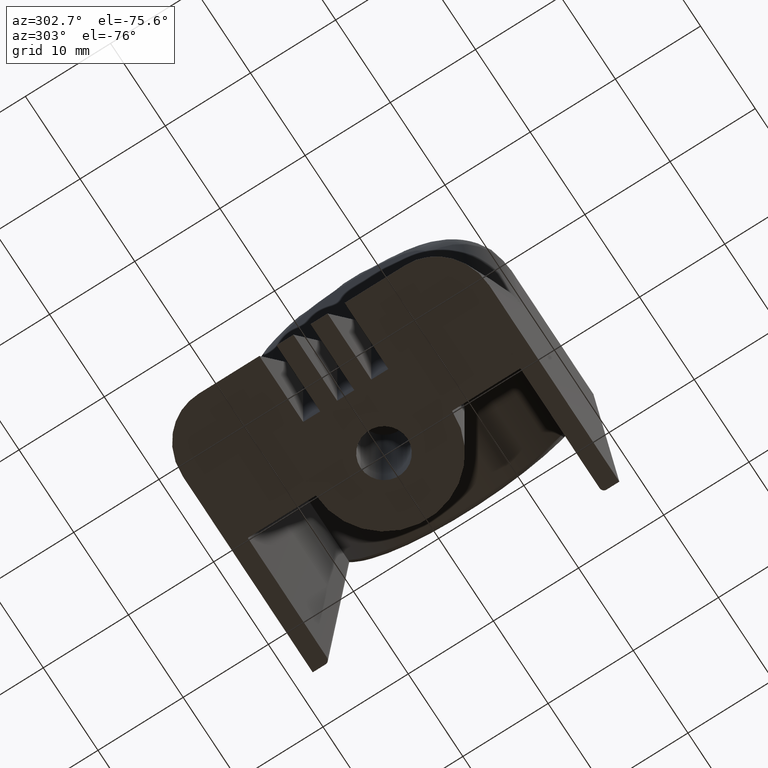
[diagram: clean part render]
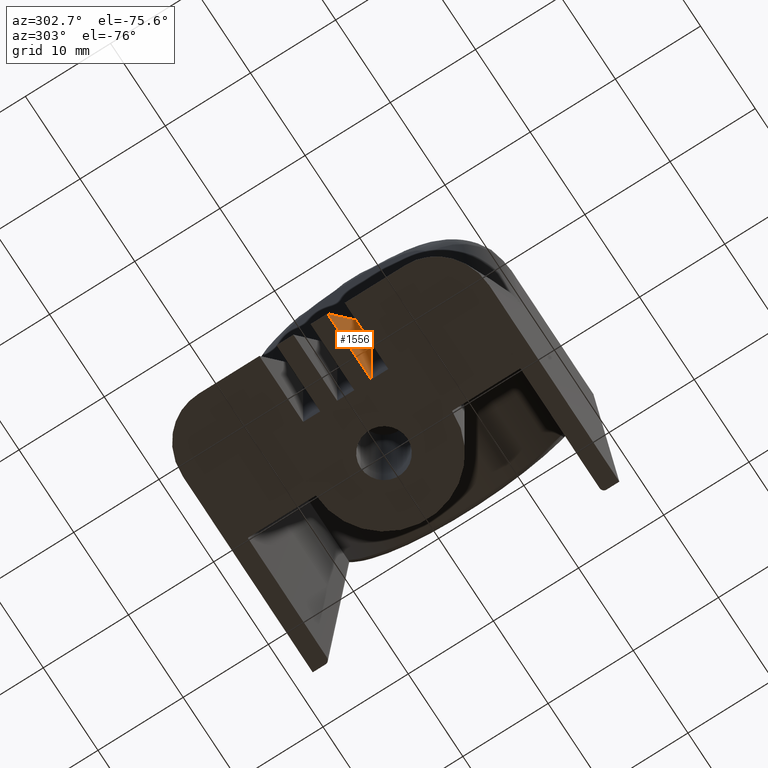
[diagram: same view with one face highlighted and labeled with its STEP entity id]
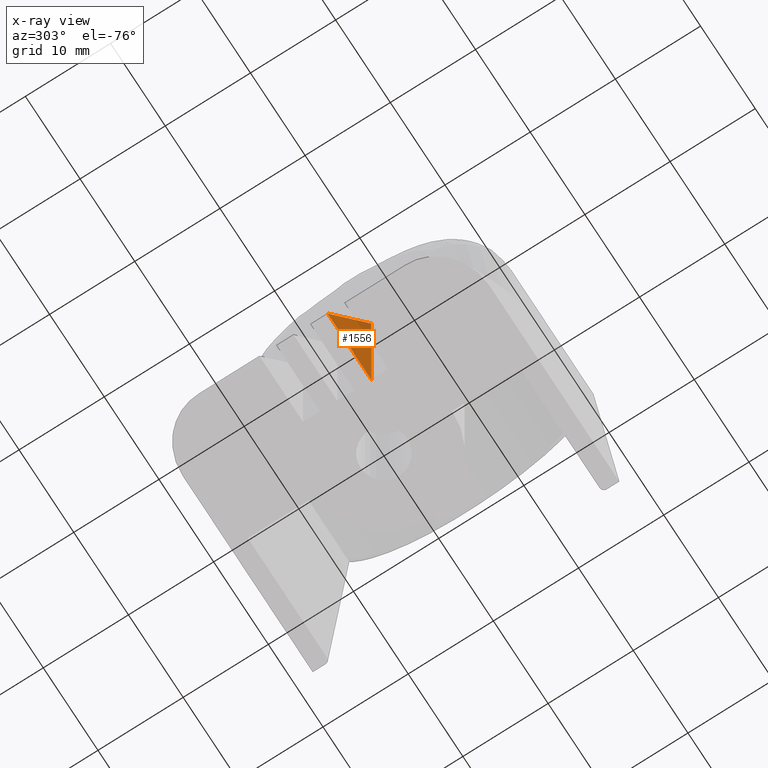
[diagram: x-ray of the same camera — body ghosted, the highlighted face saturated]
A machine part, auxiliary view. The second image highlights one B-rep face of the part: STEP entity #1556.
The next image is the same camera in x-ray: the body ghosted, the highlighted face saturated — about 12% of this face is hidden behind the body in this view.
In plain terms, the highlighted planar face has unit normal (0, -1, 0).
Its self-contained STEP definition (entity closure, byte-faithful):
#473=CARTESIAN_POINT('',(-14.999999999999996,-2.999999999999996,1.836970E-016));
#474=VERTEX_POINT('',#473);
#481=CARTESIAN_POINT('',(-6.999999999999996,-2.999999999999996,22.222222222222214));
#482=VERTEX_POINT('',#481);
#483=CARTESIAN_POINT('',(-14.999999999999996,-2.999999999999996,1.836970E-016));
#484=DIRECTION('',(0.338719468272742,-3.760542E-017,0.940887411868727));
#485=VECTOR('',#484,23.618364898820300);
#486=LINE('',#483,#485);
#487=EDGE_CURVE('',#474,#482,#486,.T.);
#1516=CARTESIAN_POINT('',(-6.999999999999996,-2.999999999999998,1.836970E-016));
#1517=VERTEX_POINT('',#1516);
#1518=CARTESIAN_POINT('',(-6.999999999999996,-2.999999999999996,22.222222222222214));
#1519=DIRECTION('',(0.0,0.0,-1.0));
#1520=VECTOR('',#1519,22.222222222222214);
#1521=LINE('',#1518,#1520);
#1522=EDGE_CURVE('',#482,#1517,#1521,.T.);
#1541=CARTESIAN_POINT('',(-6.999999999999996,-2.999999999999994,62.289848327636719));
#1542=DIRECTION('',(0.0,-1.0,0.0));
#1543=DIRECTION('',(-1.0,0.0,0.0));
#1544=AXIS2_PLACEMENT_3D('',#1541,#1542,#1543);
#1545=PLANE('',#1544);
#1546=ORIENTED_EDGE('',*,*,#487,.F.);
#1547=CARTESIAN_POINT('',(-14.999999999999996,-2.999999999999996,1.836970E-016));
#1548=DIRECTION('',(1.0,0.0,0.0));
#1549=VECTOR('',#1548,8.0);
#1550=LINE('',#1547,#1549);
#1551=EDGE_CURVE('',#474,#1517,#1550,.T.);
#1552=ORIENTED_EDGE('',*,*,#1551,.T.);
#1553=ORIENTED_EDGE('',*,*,#1522,.F.);
#1554=EDGE_LOOP('',(#1546,#1552,#1553));
#1555=FACE_OUTER_BOUND('',#1554,.T.);
#1556=ADVANCED_FACE('',(#1555),#1545,.T.);